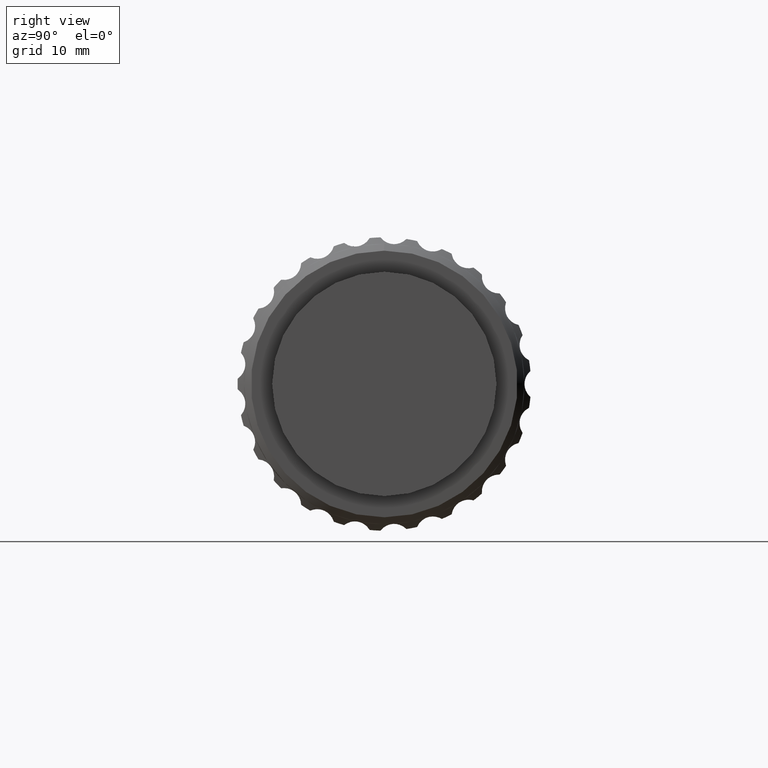
[diagram: clean part render]
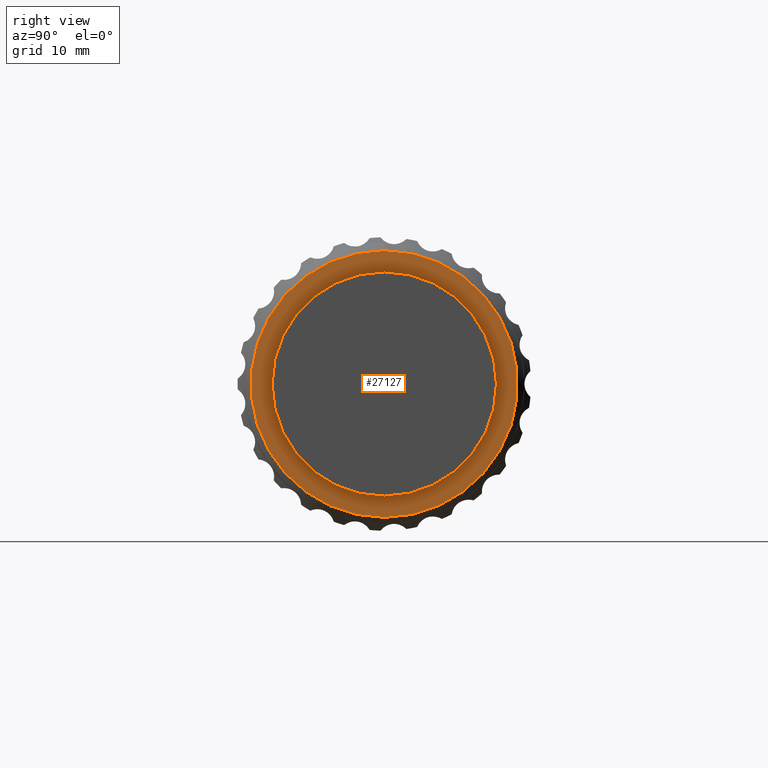
[diagram: same view with one face highlighted and labeled with its STEP entity id]
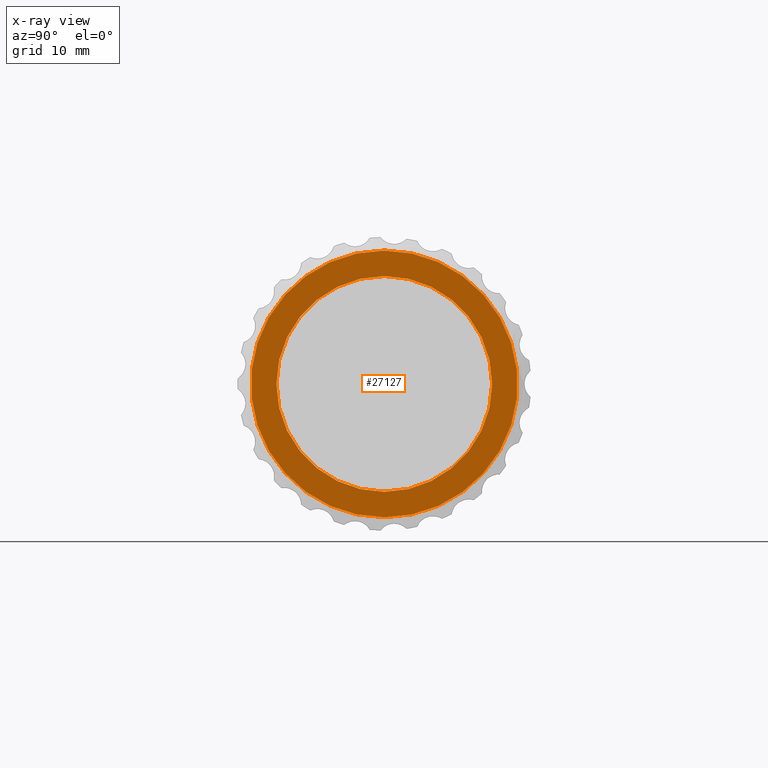
[diagram: x-ray of the same camera — body ghosted, the highlighted face saturated]
A machine part, right view. The second image highlights one B-rep face of the part: STEP entity #27127.
The next image is the same camera in x-ray: the body ghosted, the highlighted face saturated — about 0% of this face is hidden behind the body in this view.
In plain terms, the highlighted planar face has unit normal (-1, 0, -0).
Its self-contained STEP definition (entity closure, byte-faithful):
#1113 = CARTESIAN_POINT ( 'NONE',  ( 64.34999999999999432, 0.000000000000000000, 15.45000000000001883 ) ) ;
#1647 = DIRECTION ( 'NONE',  ( 0.000000000000000000, 0.000000000000000000, 1.000000000000000000 ) ) ;
#2941 = CARTESIAN_POINT ( 'NONE',  ( 64.34999999999999432, 1.904325772674135025E-15, -15.45000000000001883 ) ) ;
#3848 = DIRECTION ( 'NONE',  ( -0.000000000000000000, 0.000000000000000000, 1.000000000000000000 ) ) ;
#3943 = AXIS2_PLACEMENT_3D ( 'NONE', #12620, #29560, #21222 ) ;
#4817 = DIRECTION ( 'NONE',  ( 0.000000000000000000, 0.000000000000000000, 1.000000000000000000 ) ) ;
#5260 = CARTESIAN_POINT ( 'NONE',  ( 64.34999999999999432, 0.000000000000000000, 0.000000000000000000 ) ) ;
#6011 = VERTEX_POINT ( 'NONE', #8881 ) ;
#8881 = CARTESIAN_POINT ( 'NONE',  ( 64.34999999999999432, 1.530808498934191521E-15, -12.50000000000000000 ) ) ;
#9992 = ORIENTED_EDGE ( 'NONE', *, *, #52149, .T. ) ;
#10357 = VERTEX_POINT ( 'NONE', #1113 ) ;
#10552 = DIRECTION ( 'NONE',  ( 0.000000000000000000, 0.000000000000000000, 1.000000000000000000 ) ) ;
#12620 = CARTESIAN_POINT ( 'NONE',  ( 64.34999999999999432, 0.000000000000000000, 0.000000000000000000 ) ) ;
#13938 = EDGE_CURVE ( 'NONE', #6011, #38383, #26185, .T. ) ;
#15784 = FACE_BOUND ( 'NONE', #25027, .T. ) ;
#16330 = PLANE ( 'NONE',  #21851 ) ;
#16765 = VERTEX_POINT ( 'NONE', #2941 ) ;
#17032 = DIRECTION ( 'NONE',  ( -1.000000000000000000, -0.000000000000000000, -0.000000000000000000 ) ) ;
#17700 = EDGE_CURVE ( 'NONE', #16765, #10357, #27851, .T. ) ;
#18700 = CIRCLE ( 'NONE', #49740, 15.45000000000001883 ) ;
#19769 = EDGE_LOOP ( 'NONE', ( #9992, #48895 ) ) ;
#19952 = DIRECTION ( 'NONE',  ( -1.000000000000000000, 0.000000000000000000, -0.000000000000000000 ) ) ;
#21222 = DIRECTION ( 'NONE',  ( 0.000000000000000000, 0.000000000000000000, 1.000000000000000000 ) ) ;
#21851 = AXIS2_PLACEMENT_3D ( 'NONE', #32446, #19952, #3848 ) ;
#25027 = EDGE_LOOP ( 'NONE', ( #46341, #29051 ) ) ;
#26185 = CIRCLE ( 'NONE', #50102, 12.50000000000000000 ) ;
#27127 = ADVANCED_FACE ( 'NONE', ( #45757, #15784 ), #16330, .F. ) ;
#27851 = CIRCLE ( 'NONE', #3943, 15.45000000000001883 ) ;
#29051 = ORIENTED_EDGE ( 'NONE', *, *, #13938, .T. ) ;
#29560 = DIRECTION ( 'NONE',  ( 1.000000000000000000, 0.000000000000000000, 0.000000000000000000 ) ) ;
#30342 = AXIS2_PLACEMENT_3D ( 'NONE', #45926, #17032, #4817 ) ;
#32446 = CARTESIAN_POINT ( 'NONE',  ( 64.34999999999999432, 15.65000000000000036, 0.000000000000000000 ) ) ;
#36385 = CARTESIAN_POINT ( 'NONE',  ( 64.34999999999999432, 0.000000000000000000, 0.000000000000000000 ) ) ;
#37254 = CARTESIAN_POINT ( 'NONE',  ( 64.34999999999999432, 0.000000000000000000, 12.50000000000000000 ) ) ;
#38383 = VERTEX_POINT ( 'NONE', #37254 ) ;
#39130 = DIRECTION ( 'NONE',  ( 1.000000000000000000, 0.000000000000000000, 0.000000000000000000 ) ) ;
#45263 = DIRECTION ( 'NONE',  ( -1.000000000000000000, -0.000000000000000000, -0.000000000000000000 ) ) ;
#45757 = FACE_OUTER_BOUND ( 'NONE', #19769, .T. ) ;
#45926 = CARTESIAN_POINT ( 'NONE',  ( 64.34999999999999432, 0.000000000000000000, 0.000000000000000000 ) ) ;
#46304 = CIRCLE ( 'NONE', #30342, 12.50000000000000000 ) ;
#46341 = ORIENTED_EDGE ( 'NONE', *, *, #50397, .T. ) ;
#48895 = ORIENTED_EDGE ( 'NONE', *, *, #17700, .T. ) ;
#49740 = AXIS2_PLACEMENT_3D ( 'NONE', #5260, #39130, #1647 ) ;
#50102 = AXIS2_PLACEMENT_3D ( 'NONE', #36385, #45263, #10552 ) ;
#50397 = EDGE_CURVE ( 'NONE', #38383, #6011, #46304, .T. ) ;
#52149 = EDGE_CURVE ( 'NONE', #10357, #16765, #18700, .T. ) ;